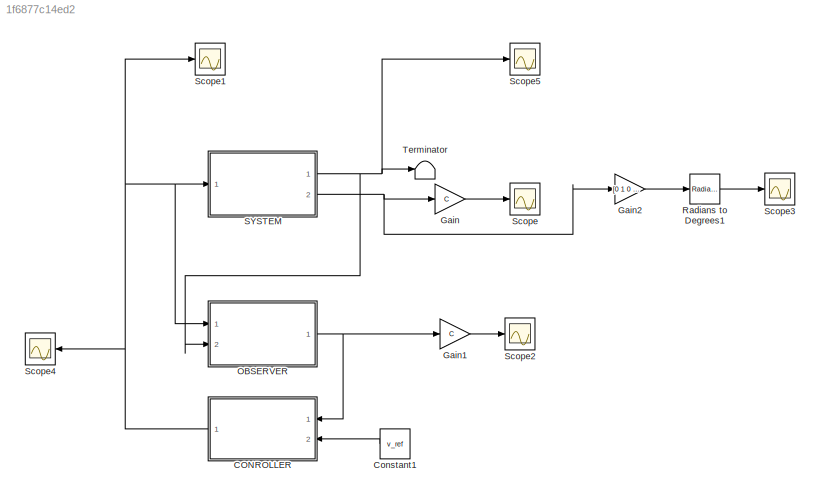
MODEL slx_1f6877c14ed2
KIND model
CONFIG AbsTol = auto
CONFIG EnableMultiTasking = off
CONFIG FixedStep = auto
CONFIG MaxStep = auto
CONFIG MinStep = auto
CONFIG RelTol = 1e-3
CONFIG SampleTimeConstraint = Unconstrained
CONFIG SolverName = VariableStepAuto
CONFIG StartTime = 0.0
CONFIG StopTime = 10.0
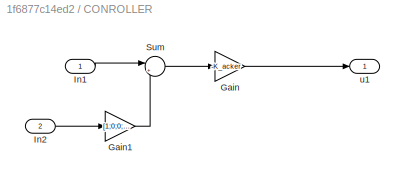
BLOCK [SubSystem] CONROLLER
  Ports = [2, 1]
  RequestExecContextInheritance = off
BLOCK [Gain] CONROLLER/Gain
  Gain = -K_acker
  Multiplication = Matrix(K*u)
BLOCK [Gain] CONROLLER/Gain1
  Gain = [1;0;0;0]
BLOCK [Inport] CONROLLER/In1
BLOCK [Inport] CONROLLER/In2
  Port = 2
BLOCK [Sum] CONROLLER/Sum
  Inputs = |+-
  Ports = [2, 1]
BLOCK [Outport] CONROLLER/u1
  VectorParamsAs1DForOutWhenUnconnected = off
BLOCK [Constant] Constant1
  Value = v_ref
BLOCK [Gain] Gain
  Gain = C
BLOCK [Gain] Gain1
  Gain = C
BLOCK [Gain] Gain2
  Gain = [0 1 0 0]
  Multiplication = Matrix(K*u)
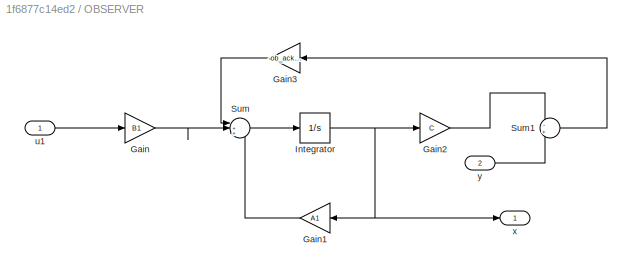
BLOCK [SubSystem] OBSERVER 
  Ports = [2, 1]
  RequestExecContextInheritance = off
BLOCK [Gain] OBSERVER /Gain
  Gain = B1
  Multiplication = Matrix(K*u)
BLOCK [Gain] OBSERVER /Gain1
  Gain = A1
  Multiplication = Matrix(K*u)
BLOCK [Gain] OBSERVER /Gain2
  Gain = C
  Multiplication = Matrix(K*u)
BLOCK [Gain] OBSERVER /Gain3
  Gain = -ob_acker
  Multiplication = Matrix(K*u)
BLOCK [Integrator] OBSERVER /Integrator
  InitialCondition = x0
  Ports = [1, 1]
BLOCK [Sum] OBSERVER /Sum
  Inputs = |+++
  Ports = [3, 1]
BLOCK [Sum] OBSERVER /Sum1
  Inputs = -+
  Ports = [2, 1]
BLOCK [Inport] OBSERVER /u1
BLOCK [Outport] OBSERVER /x
  VectorParamsAs1DForOutWhenUnconnected = off
BLOCK [Inport] OBSERVER /y
  Port = 2
BLOCK [Reference] Radians to Degrees1  REF=simulink_extras/Transformations/Radians
to Degrees
  Ports = [1, 1]
  SourceBlock = simulink_extras/Transformations/Radians\nto Degrees
  SourceProductBaseCode = SL
  SourceType = RadiansToDegrees
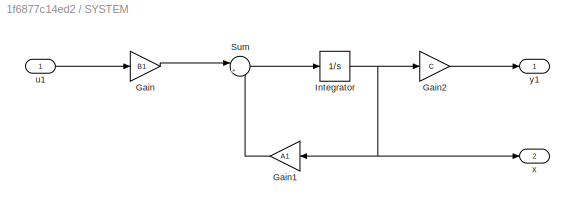
BLOCK [SubSystem] SYSTEM
  Ports = [1, 2]
  RequestExecContextInheritance = off
BLOCK [Gain] SYSTEM/Gain
  Gain = B1
  Multiplication = Matrix(K*u)
BLOCK [Gain] SYSTEM/Gain1
  Gain = A1
  Multiplication = Matrix(K*u)
BLOCK [Gain] SYSTEM/Gain2
  Gain = C
  Multiplication = Matrix(K*u)
BLOCK [Integrator] SYSTEM/Integrator
  InitialCondition = x0
  Ports = [1, 1]
BLOCK [Sum] SYSTEM/Sum
  Inputs = |++
  Ports = [2, 1]
BLOCK [Inport] SYSTEM/u1
BLOCK [Outport] SYSTEM/x
  Port = 2
  VectorParamsAs1DForOutWhenUnconnected = off
BLOCK [Outport] SYSTEM/y1
  VectorParamsAs1DForOutWhenUnconnected = off
BLOCK [Scope] Scope
  Floating = off
  NumInputPorts = 1
  Ports = [1]
  ScopeSpecificationString = Simulink.scopes.TimeScopeBlockCfg('CurrentConfiguration', extmgr.ConfigurationSet(extmgr.Configuration('Core','General UI',true),extmgr.Configuration('Core','Source UI',true),extmgr.Configuration('Sources','WiredSimulink',true,'DataLoggingVariableName','ScopeData1'),extmgr.Configuration('Visuals','Time Domain',true,'SerializedDisplays',{struct('MinYLimReal','-26.19146','MaxYLimReal','5.7012','YLab...<+1436ch>
BLOCK [Scope] Scope1
  Floating = off
  NumInputPorts = 1
  Ports = [1]
  ScopeSpecificationString = Simulink.scopes.TimeScopeBlockCfg('CurrentConfiguration', extmgr.ConfigurationSet(extmgr.Configuration('Core','General UI',true),extmgr.Configuration('Core','Source UI',true),extmgr.Configuration('Sources','WiredSimulink',true,'DataLoggingVariableName','ScopeData2'),extmgr.Configuration('Visuals','Time Domain',true,'SerializedDisplays',{struct('MinYLimReal','-6.41546','MaxYLimReal','19.17623','YLa...<+1419ch>
BLOCK [Scope] Scope2
  Floating = off
  NumInputPorts = 1
  Ports = [1]
  ScopeSpecificationString = Simulink.scopes.TimeScopeBlockCfg('CurrentConfiguration', extmgr.ConfigurationSet(extmgr.Configuration('Core','General UI',true),extmgr.Configuration('Core','Source UI',true),extmgr.Configuration('Sources','WiredSimulink',true,'DataLoggingVariableName','ScopeData3'),extmgr.Configuration('Visuals','Time Domain',true,'SerializedDisplays',{struct('MinYLimReal','-4672.10346','MaxYLimReal','8131.56973'...<+1514ch>
BLOCK [Scope] Scope3
  Floating = off
  NumInputPorts = 1
  Ports = [1]
  ScopeSpecificationString = Simulink.scopes.TimeScopeBlockCfg('CurrentConfiguration', extmgr.ConfigurationSet(extmgr.Configuration('Core','General UI',true),extmgr.Configuration('Core','Source UI',true),extmgr.Configuration('Sources','WiredSimulink',true,'DataLoggingVariableName','ScopeData1'),extmgr.Configuration('Visuals','Time Domain',true,'SerializedDisplays',{struct('MinYLimReal','-50.75064','MaxYLimReal','29.82025','YL...<+1452ch>
BLOCK [Scope] Scope4
  Floating = off
  NumInputPorts = 1
  Ports = [1]
  ScopeSpecificationString = Simulink.scopes.TimeScopeBlockCfg('CurrentConfiguration', extmgr.ConfigurationSet(extmgr.Configuration('Core','General UI',true),extmgr.Configuration('Core','Source UI',true),extmgr.Configuration('Sources','WiredSimulink',true,'DataLoggingVariableName','ScopeData5'),extmgr.Configuration('Visuals','Time Domain',true,'SerializedDisplays',{struct('MinYLimReal','-1.06358','MaxYLimReal','0.97975','YLab...<+1460ch>
BLOCK [Scope] Scope5
  Floating = off
  NumInputPorts = 1
  Ports = [1]
  ScopeSpecificationString = Simulink.scopes.TimeScopeBlockCfg('CurrentConfiguration', extmgr.ConfigurationSet(extmgr.Configuration('Core','General UI',true),extmgr.Configuration('Core','Source UI',true),extmgr.Configuration('Sources','WiredSimulink',true),extmgr.Configuration('Visuals','Time Domain',true,'SerializedDisplays',{struct('MinYLimReal','-43.4663','MaxYLimReal','22.75952','YLabelReal','','MinYLimMag','0.00000','Max...<+1427ch>
BLOCK [Terminator] Terminator
LINE CONROLLER/Gain1:1 -> CONROLLER/Sum:2
LINE CONROLLER/Gain:1 -> CONROLLER/u1:1
LINE CONROLLER/In1:1 -> CONROLLER/Sum:1
LINE CONROLLER/In2:1 -> CONROLLER/Gain1:1
LINE CONROLLER/Sum:1 -> CONROLLER/Gain:1
NET CONROLLER:1 -> OBSERVER :1, SYSTEM:1, Scope1:1, Scope4:1
LINE Constant1:1 -> CONROLLER:2
LINE Gain1:1 -> Scope2:1
LINE Gain2:1 -> Radians to Degrees1:1
LINE Gain:1 -> Scope:1
LINE OBSERVER /Gain1:1 -> OBSERVER /Sum:3
LINE OBSERVER /Gain2:1 -> OBSERVER /Sum1:1
LINE OBSERVER /Gain3:1 -> OBSERVER /Sum:1
LINE OBSERVER /Gain:1 -> OBSERVER /Sum:2
NET OBSERVER /Integrator:1 -> OBSERVER /Gain1:1, OBSERVER /Gain2:1, OBSERVER /x:1
LINE OBSERVER /Sum1:1 -> OBSERVER /Gain3:1
LINE OBSERVER /Sum:1 -> OBSERVER /Integrator:1
LINE OBSERVER /u1:1 -> OBSERVER /Gain:1
LINE OBSERVER /y:1 -> OBSERVER /Sum1:2
NET OBSERVER :1 -> CONROLLER:1, Gain1:1
LINE Radians to Degrees1:1 -> Scope3:1
LINE SYSTEM/Gain1:1 -> SYSTEM/Sum:2
LINE SYSTEM/Gain2:1 -> SYSTEM/y1:1
LINE SYSTEM/Gain:1 -> SYSTEM/Sum:1
NET SYSTEM/Integrator:1 -> SYSTEM/Gain1:1, SYSTEM/Gain2:1, SYSTEM/x:1
LINE SYSTEM/Sum:1 -> SYSTEM/Integrator:1
LINE SYSTEM/u1:1 -> SYSTEM/Gain:1
NET SYSTEM:1 -> OBSERVER :2, Scope5:1, Terminator:1
NET SYSTEM:2 -> Gain2:1, Gain:1
note: NET lines group one-source signal fan-out (src -> all destinations, sorted); 1:1 wires keep LINE
